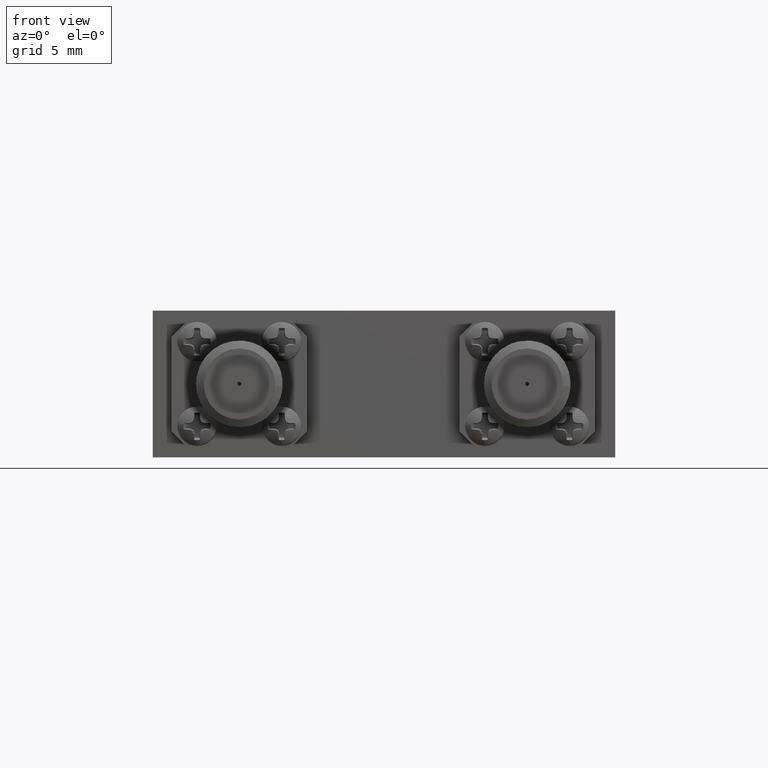
[diagram: clean part render]
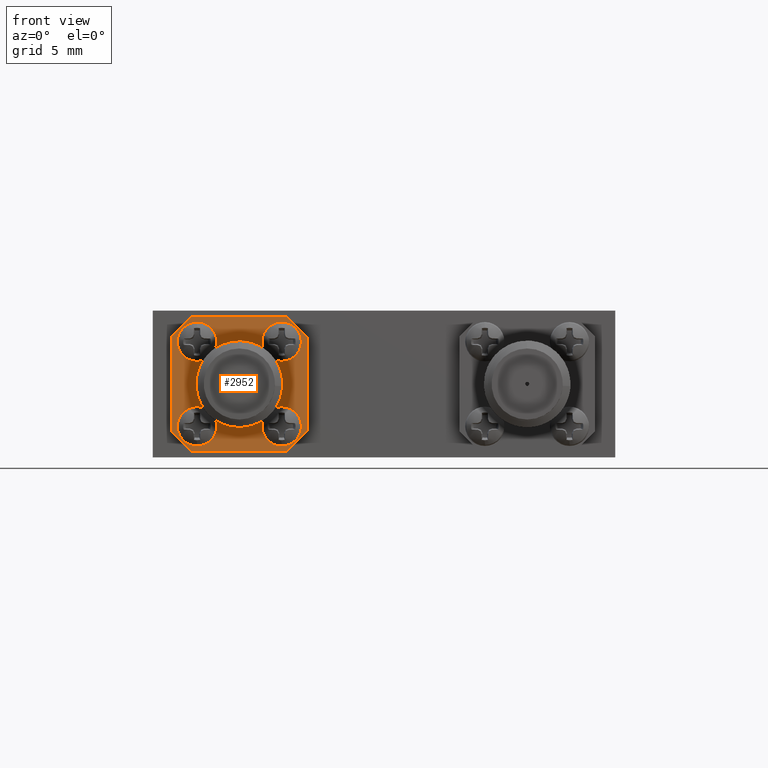
[diagram: same view with one face highlighted and labeled with its STEP entity id]
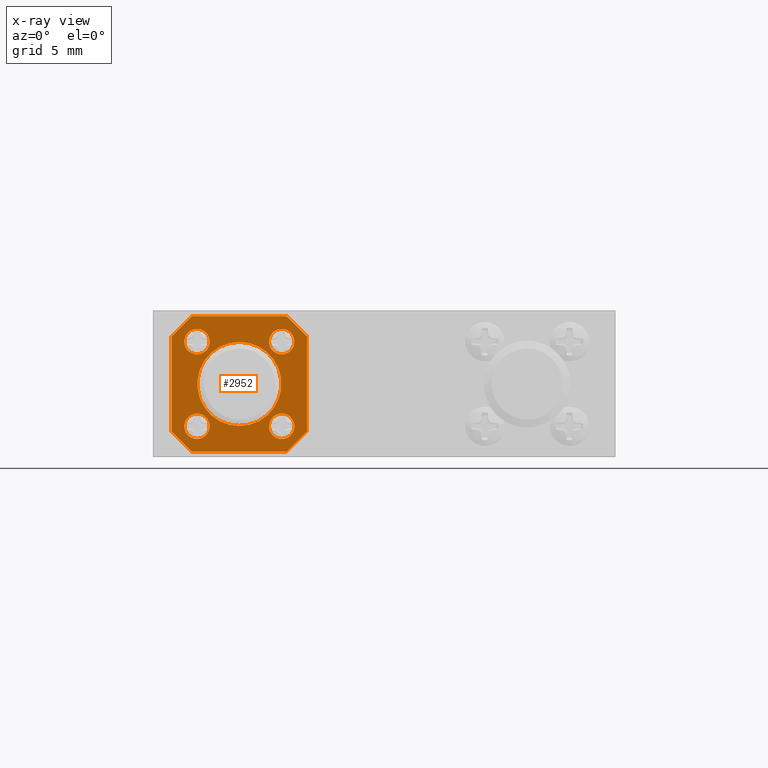
[diagram: x-ray of the same camera — body ghosted, the highlighted face saturated]
A machine part, front view. The second image highlights one B-rep face of the part: STEP entity #2952.
The next image is the same camera in x-ray: the body ghosted, the highlighted face saturated — about 0% of this face is hidden behind the body in this view.
In plain terms, the highlighted planar face has unit normal (0, -1, 0).
Its self-contained STEP definition (entity closure, byte-faithful):
#413 = VERTEX_POINT ( 'NONE', #42454 ) ;
#796 = PLANE ( 'NONE',  #2853 ) ;
#1595 = DIRECTION ( 'NONE',  ( 0.0000000000000000000, -1.000000000000000000, 0.0000000000000000000 ) ) ;
#1933 = ORIENTED_EDGE ( 'NONE', *, *, #74805, .F. ) ;
#2853 = AXIS2_PLACEMENT_3D ( 'NONE', #33161, #1595, #26894 ) ;
#2860 = CARTESIAN_POINT ( 'NONE',  ( -0.3021653543307088500, -0.5030708661417322400, 0.3415354330708660900 ) ) ;
#2952 = ADVANCED_FACE ( 'NONE', ( #5254, #70632, #17904, #80399, #62845, #46227 ), #796, .T. ) ;
#3160 = AXIS2_PLACEMENT_3D ( 'NONE', #2860, #39094, #40171 ) ;
#3548 = EDGE_CURVE ( 'NONE', #55640, #52828, #22694, .T. ) ;
#4234 = CARTESIAN_POINT ( 'NONE',  ( -0.3021653543307088500, -0.5030708661417322400, 0.3040354330708661100 ) ) ;
#4657 = DIRECTION ( 'NONE',  ( 0.0000000000000000000, 0.0000000000000000000, 1.000000000000000000 ) ) ;
#4688 = DIRECTION ( 'NONE',  ( 0.0000000000000000000, -1.000000000000000000, 0.0000000000000000000 ) ) ;
#5115 = DIRECTION ( 'NONE',  ( 0.0000000000000000000, 0.0000000000000000000, 1.000000000000000000 ) ) ;
#5254 = FACE_OUTER_BOUND ( 'NONE', #26840, .T. ) ;
#5313 = AXIS2_PLACEMENT_3D ( 'NONE', #67167, #41761, #16152 ) ;
#6282 = VERTEX_POINT ( 'NONE', #62712 ) ;
#6309 = CARTESIAN_POINT ( 'NONE',  ( -0.2271653543307087000, -0.5030708661417322400, 0.4165354330708661000 ) ) ;
#6956 = VECTOR ( 'NONE', #13506, 39.37007874015748100 ) ;
#7221 = VERTEX_POINT ( 'NONE', #66153 ) ;
#7657 = EDGE_CURVE ( 'NONE', #413, #51762, #23326, .T. ) ;
#7745 = DIRECTION ( 'NONE',  ( 0.0000000000000000000, -1.000000000000000000, 0.0000000000000000000 ) ) ;
#8239 = CARTESIAN_POINT ( 'NONE',  ( -0.5521653543307089000, -0.5030708661417322400, 0.3790354330708661200 ) ) ;
#8643 = ORIENTED_EDGE ( 'NONE', *, *, #68965, .T. ) ;
#9047 = DIRECTION ( 'NONE',  ( 0.0000000000000000000, 0.0000000000000000000, 1.000000000000000000 ) ) ;
#13506 = DIRECTION ( 'NONE',  ( 0.0000000000000000000, 0.0000000000000000000, -1.000000000000000000 ) ) ;
#14545 = CARTESIAN_POINT ( 'NONE',  ( -0.5521653543307089000, -0.5030708661417322400, 0.09153543307086610400 ) ) ;
#15290 = VECTOR ( 'NONE', #55168, 39.37007874015748100 ) ;
#15778 = VERTEX_POINT ( 'NONE', #19891 ) ;
#16025 = CARTESIAN_POINT ( 'NONE',  ( -0.5521653543307089000, -0.5030708661417322400, 0.3040354330708661100 ) ) ;
#16152 = DIRECTION ( 'NONE',  ( 0.0000000000000000000, 0.0000000000000000000, 1.000000000000000000 ) ) ;
#16437 = VECTOR ( 'NONE', #74801, 39.37007874015748100 ) ;
#16738 = ORIENTED_EDGE ( 'NONE', *, *, #70286, .T. ) ;
#17601 = AXIS2_PLACEMENT_3D ( 'NONE', #72045, #34365, #9047 ) ;
#17871 = LINE ( 'NONE', #37123, #56931 ) ;
#17904 = FACE_BOUND ( 'NONE', #22629, .T. ) ;
#18592 = DIRECTION ( 'NONE',  ( -0.7071067811865466800, 0.0000000000000000000, 0.7071067811865483500 ) ) ;
#19436 = VECTOR ( 'NONE', #50449, 39.37007874015748900 ) ;
#19602 = DIRECTION ( 'NONE',  ( 0.0000000000000000000, -1.000000000000000000, 0.0000000000000000000 ) ) ;
#19891 = CARTESIAN_POINT ( 'NONE',  ( -0.2271653543307087000, -0.5030708661417322400, 0.07653543307086588300 ) ) ;
#20132 = VERTEX_POINT ( 'NONE', #4234 ) ;
#20244 = VERTEX_POINT ( 'NONE', #67490 ) ;
#20682 = EDGE_CURVE ( 'NONE', #67539, #413, #43995, .T. ) ;
#21392 = CARTESIAN_POINT ( 'NONE',  ( -0.5521653543307089000, -0.5030708661417322400, 0.05403543307086611900 ) ) ;
#21396 = ORIENTED_EDGE ( 'NONE', *, *, #66496, .T. ) ;
#22334 = ORIENTED_EDGE ( 'NONE', *, *, #64788, .F. ) ;
#22629 = EDGE_LOOP ( 'NONE', ( #59827, #42180 ) ) ;
#22694 = CIRCLE ( 'NONE', #54059, 0.03749999999999997800 ) ;
#22801 = CIRCLE ( 'NONE', #52162, 0.03750000000000001200 ) ;
#23154 = EDGE_CURVE ( 'NONE', #59109, #20244, #76973, .T. ) ;
#23268 = DIRECTION ( 'NONE',  ( 1.000000000000000000, 0.0000000000000000000, 8.537024980200821300E-017 ) ) ;
#23326 = LINE ( 'NONE', #43612, #16437 ) ;
#24352 = ORIENTED_EDGE ( 'NONE', *, *, #48949, .F. ) ;
#25385 = CARTESIAN_POINT ( 'NONE',  ( -0.6271653543307088600, -0.5030708661417322400, 0.3565354330708661000 ) ) ;
#25637 = ORIENTED_EDGE ( 'NONE', *, *, #64203, .T. ) ;
#26840 = EDGE_LOOP ( 'NONE', ( #25637, #8643, #36947, #61466, #16738, #37581, #21396, #45222 ) ) ;
#26894 = DIRECTION ( 'NONE',  ( 0.0000000000000000000, 0.0000000000000000000, 1.000000000000000000 ) ) ;
#30618 = VERTEX_POINT ( 'NONE', #63481 ) ;
#31398 = ORIENTED_EDGE ( 'NONE', *, *, #61382, .F. ) ;
#31857 = CARTESIAN_POINT ( 'NONE',  ( -0.5521653543307089000, -0.5030708661417322400, 0.3415354330708660900 ) ) ;
#32006 = CIRCLE ( 'NONE', #64592, 0.03750000000000001200 ) ;
#32575 = CARTESIAN_POINT ( 'NONE',  ( -0.6271653543307088600, -0.5030708661417322400, 0.4165354330708659900 ) ) ;
#32802 = DIRECTION ( 'NONE',  ( 0.0000000000000000000, 0.0000000000000000000, 1.000000000000000000 ) ) ;
#32804 = DIRECTION ( 'NONE',  ( 0.0000000000000000000, 0.0000000000000000000, 1.000000000000000000 ) ) ;
#33109 = LINE ( 'NONE', #76203, #19436 ) ;
#33161 = CARTESIAN_POINT ( 'NONE',  ( -0.4271653543307088500, -0.5030708661417322400, 0.2165354330708660600 ) ) ;
#34365 = DIRECTION ( 'NONE',  ( 0.0000000000000000000, -1.000000000000000000, 0.0000000000000000000 ) ) ;
#34436 = EDGE_LOOP ( 'NONE', ( #1933, #31398 ) ) ;
#34596 = LINE ( 'NONE', #6309, #38502 ) ;
#35066 = EDGE_CURVE ( 'NONE', #66541, #71068, #22801, .T. ) ;
#35250 = AXIS2_PLACEMENT_3D ( 'NONE', #61540, #80128, #5115 ) ;
#35413 = EDGE_LOOP ( 'NONE', ( #22334, #66558 ) ) ;
#35473 = CIRCLE ( 'NONE', #3160, 0.03750000000000001200 ) ;
#35799 = CARTESIAN_POINT ( 'NONE',  ( -0.3021653543307088500, -0.5030708661417322400, 0.1290354330708661500 ) ) ;
#35964 = CARTESIAN_POINT ( 'NONE',  ( -0.4271653543307088500, -0.5030708661417322400, 0.2165354330708660600 ) ) ;
#36446 = ORIENTED_EDGE ( 'NONE', *, *, #3548, .F. ) ;
#36487 = EDGE_LOOP ( 'NONE', ( #36446, #41317 ) ) ;
#36947 = ORIENTED_EDGE ( 'NONE', *, *, #20682, .T. ) ;
#37123 = CARTESIAN_POINT ( 'NONE',  ( -0.2571653543307086400, -0.5030708661417322400, 0.3865354330708658000 ) ) ;
#37581 = ORIENTED_EDGE ( 'NONE', *, *, #56863, .T. ) ;
#37850 = DIRECTION ( 'NONE',  ( 0.0000000000000000000, 0.0000000000000000000, 1.000000000000000000 ) ) ;
#37965 = VERTEX_POINT ( 'NONE', #70147 ) ;
#38502 = VECTOR ( 'NONE', #63872, 39.37007874015748100 ) ;
#39094 = DIRECTION ( 'NONE',  ( 0.0000000000000000000, -1.000000000000000000, 0.0000000000000000000 ) ) ;
#39725 = CIRCLE ( 'NONE', #60037, 0.03750000000000001200 ) ;
#40171 = DIRECTION ( 'NONE',  ( 0.0000000000000000000, 0.0000000000000000000, 1.000000000000000000 ) ) ;
#41317 = ORIENTED_EDGE ( 'NONE', *, *, #64543, .F. ) ;
#41547 = CIRCLE ( 'NONE', #17601, 0.03749999999999997800 ) ;
#41686 = VERTEX_POINT ( 'NONE', #56327 ) ;
#41761 = DIRECTION ( 'NONE',  ( 0.0000000000000000000, -1.000000000000000000, 0.0000000000000000000 ) ) ;
#42180 = ORIENTED_EDGE ( 'NONE', *, *, #43468, .F. ) ;
#42222 = VERTEX_POINT ( 'NONE', #74019 ) ;
#42282 = CARTESIAN_POINT ( 'NONE',  ( -0.3021653543307088500, -0.5030708661417322400, 0.09153543307086613200 ) ) ;
#42454 = CARTESIAN_POINT ( 'NONE',  ( -0.6271653543307088600, -0.5030708661417322400, 0.07653543307086622900 ) ) ;
#43468 = EDGE_CURVE ( 'NONE', #42222, #70289, #39725, .T. ) ;
#43612 = CARTESIAN_POINT ( 'NONE',  ( -0.5971653543307091600, -0.5030708661417322400, 0.04653543307086648000 ) ) ;
#43995 = LINE ( 'NONE', #32575, #6956 ) ;
#44411 = DIRECTION ( 'NONE',  ( 0.0000000000000000000, 0.0000000000000000000, 1.000000000000000000 ) ) ;
#45222 = ORIENTED_EDGE ( 'NONE', *, *, #74996, .T. ) ;
#45392 = CIRCLE ( 'NONE', #47925, 0.1239999999999999600 ) ;
#46227 = FACE_BOUND ( 'NONE', #35413, .T. ) ;
#46862 = LINE ( 'NONE', #72095, #48806 ) ;
#47154 = CIRCLE ( 'NONE', #35250, 0.03750000000000001200 ) ;
#47925 = AXIS2_PLACEMENT_3D ( 'NONE', #35964, #79674, #4657 ) ;
#48569 = EDGE_CURVE ( 'NONE', #70289, #42222, #32006, .T. ) ;
#48806 = VECTOR ( 'NONE', #66049, 39.37007874015748100 ) ;
#48949 = EDGE_CURVE ( 'NONE', #71068, #66541, #47154, .T. ) ;
#50060 = CARTESIAN_POINT ( 'NONE',  ( -0.5521653543307089000, -0.5030708661417322400, 0.1290354330708660700 ) ) ;
#50449 = DIRECTION ( 'NONE',  ( -0.7071067811865486800, -0.0000000000000000000, -0.7071067811865462400 ) ) ;
#51762 = VERTEX_POINT ( 'NONE', #61484 ) ;
#52162 = AXIS2_PLACEMENT_3D ( 'NONE', #31857, #19602, #44411 ) ;
#52828 = VERTEX_POINT ( 'NONE', #21392 ) ;
#54059 = AXIS2_PLACEMENT_3D ( 'NONE', #14545, #69941, #32802 ) ;
#54362 = CARTESIAN_POINT ( 'NONE',  ( -0.6271653543307088600, -0.5030708661417322400, 0.01653543307086601300 ) ) ;
#55168 = DIRECTION ( 'NONE',  ( -1.000000000000000000, 0.0000000000000000000, -1.707404996040164300E-016 ) ) ;
#55352 = VECTOR ( 'NONE', #23268, 39.37007874015748100 ) ;
#55640 = VERTEX_POINT ( 'NONE', #50060 ) ;
#55869 = CARTESIAN_POINT ( 'NONE',  ( -0.4271653543307088500, -0.5030708661417322400, 0.2165354330708660600 ) ) ;
#56327 = CARTESIAN_POINT ( 'NONE',  ( -0.2871653543307088900, -0.5030708661417322400, 0.4165354330708661000 ) ) ;
#56863 = EDGE_CURVE ( 'NONE', #30618, #15778, #46862, .T. ) ;
#56931 = VECTOR ( 'NONE', #18592, 39.37007874015748100 ) ;
#58178 = AXIS2_PLACEMENT_3D ( 'NONE', #55869, #68725, #37850 ) ;
#59109 = VERTEX_POINT ( 'NONE', #72069 ) ;
#59827 = ORIENTED_EDGE ( 'NONE', *, *, #48569, .F. ) ;
#60037 = AXIS2_PLACEMENT_3D ( 'NONE', #42282, #4688, #67140 ) ;
#60180 = LINE ( 'NONE', #61152, #15290 ) ;
#61152 = CARTESIAN_POINT ( 'NONE',  ( -0.6271653543307088600, -0.5030708661417322400, 0.4165354330708659900 ) ) ;
#61382 = EDGE_CURVE ( 'NONE', #20132, #37965, #80007, .T. ) ;
#61466 = ORIENTED_EDGE ( 'NONE', *, *, #7657, .T. ) ;
#61484 = CARTESIAN_POINT ( 'NONE',  ( -0.5671653543307088000, -0.5030708661417322400, 0.01653543307086601300 ) ) ;
#61540 = CARTESIAN_POINT ( 'NONE',  ( -0.5521653543307089000, -0.5030708661417322400, 0.3415354330708660900 ) ) ;
#62712 = CARTESIAN_POINT ( 'NONE',  ( -0.2271653543307087000, -0.5030708661417322400, 0.3565354330708658300 ) ) ;
#62845 = FACE_BOUND ( 'NONE', #66982, .T. ) ;
#63481 = CARTESIAN_POINT ( 'NONE',  ( -0.2871653543307088900, -0.5030708661417322400, 0.01653543307086604800 ) ) ;
#63872 = DIRECTION ( 'NONE',  ( 0.0000000000000000000, 0.0000000000000000000, 1.000000000000000000 ) ) ;
#64203 = EDGE_CURVE ( 'NONE', #41686, #7221, #60180, .T. ) ;
#64543 = EDGE_CURVE ( 'NONE', #52828, #55640, #41547, .T. ) ;
#64592 = AXIS2_PLACEMENT_3D ( 'NONE', #76247, #7745, #32804 ) ;
#64788 = EDGE_CURVE ( 'NONE', #20244, #59109, #45392, .T. ) ;
#66049 = DIRECTION ( 'NONE',  ( 0.7071067811865491300, -0.0000000000000000000, 0.7071067811865459100 ) ) ;
#66153 = CARTESIAN_POINT ( 'NONE',  ( -0.5671653543307085800, -0.5030708661417322400, 0.4165354330708659900 ) ) ;
#66496 = EDGE_CURVE ( 'NONE', #15778, #6282, #34596, .T. ) ;
#66541 = VERTEX_POINT ( 'NONE', #8239 ) ;
#66558 = ORIENTED_EDGE ( 'NONE', *, *, #23154, .F. ) ;
#66982 = EDGE_LOOP ( 'NONE', ( #69313, #24352 ) ) ;
#67140 = DIRECTION ( 'NONE',  ( 0.0000000000000000000, 0.0000000000000000000, 1.000000000000000000 ) ) ;
#67167 = CARTESIAN_POINT ( 'NONE',  ( -0.3021653543307088500, -0.5030708661417322400, 0.3415354330708660900 ) ) ;
#67490 = CARTESIAN_POINT ( 'NONE',  ( -0.4271653543307088500, -0.5030708661417322400, 0.09253543307086607700 ) ) ;
#67539 = VERTEX_POINT ( 'NONE', #25385 ) ;
#68725 = DIRECTION ( 'NONE',  ( 0.0000000000000000000, -1.000000000000000000, 0.0000000000000000000 ) ) ;
#68965 = EDGE_CURVE ( 'NONE', #7221, #67539, #33109, .T. ) ;
#69076 = LINE ( 'NONE', #54362, #55352 ) ;
#69313 = ORIENTED_EDGE ( 'NONE', *, *, #35066, .F. ) ;
#69941 = DIRECTION ( 'NONE',  ( 0.0000000000000000000, -1.000000000000000000, 0.0000000000000000000 ) ) ;
#70147 = CARTESIAN_POINT ( 'NONE',  ( -0.3021653543307088500, -0.5030708661417322400, 0.3790354330708661200 ) ) ;
#70286 = EDGE_CURVE ( 'NONE', #51762, #30618, #69076, .T. ) ;
#70289 = VERTEX_POINT ( 'NONE', #35799 ) ;
#70632 = FACE_BOUND ( 'NONE', #34436, .T. ) ;
#71068 = VERTEX_POINT ( 'NONE', #16025 ) ;
#72045 = CARTESIAN_POINT ( 'NONE',  ( -0.5521653543307089000, -0.5030708661417322400, 0.09153543307086610400 ) ) ;
#72069 = CARTESIAN_POINT ( 'NONE',  ( -0.4271653543307088500, -0.5030708661417322400, 0.3405354330708660300 ) ) ;
#72095 = CARTESIAN_POINT ( 'NONE',  ( -0.2571653543307091400, -0.5030708661417322400, 0.04653543307086559200 ) ) ;
#74019 = CARTESIAN_POINT ( 'NONE',  ( -0.3021653543307088500, -0.5030708661417322400, 0.05403543307086613300 ) ) ;
#74801 = DIRECTION ( 'NONE',  ( 0.7071067811865460200, -0.0000000000000000000, -0.7071067811865490200 ) ) ;
#74805 = EDGE_CURVE ( 'NONE', #37965, #20132, #35473, .T. ) ;
#74996 = EDGE_CURVE ( 'NONE', #6282, #41686, #17871, .T. ) ;
#76203 = CARTESIAN_POINT ( 'NONE',  ( -0.5971653543307083900, -0.5030708661417322400, 0.3865354330708663000 ) ) ;
#76247 = CARTESIAN_POINT ( 'NONE',  ( -0.3021653543307088500, -0.5030708661417322400, 0.09153543307086613200 ) ) ;
#76973 = CIRCLE ( 'NONE', #58178, 0.1239999999999999600 ) ;
#79674 = DIRECTION ( 'NONE',  ( 0.0000000000000000000, -1.000000000000000000, 0.0000000000000000000 ) ) ;
#80007 = CIRCLE ( 'NONE', #5313, 0.03750000000000001200 ) ;
#80128 = DIRECTION ( 'NONE',  ( 0.0000000000000000000, -1.000000000000000000, 0.0000000000000000000 ) ) ;
#80399 = FACE_BOUND ( 'NONE', #36487, .T. ) ;